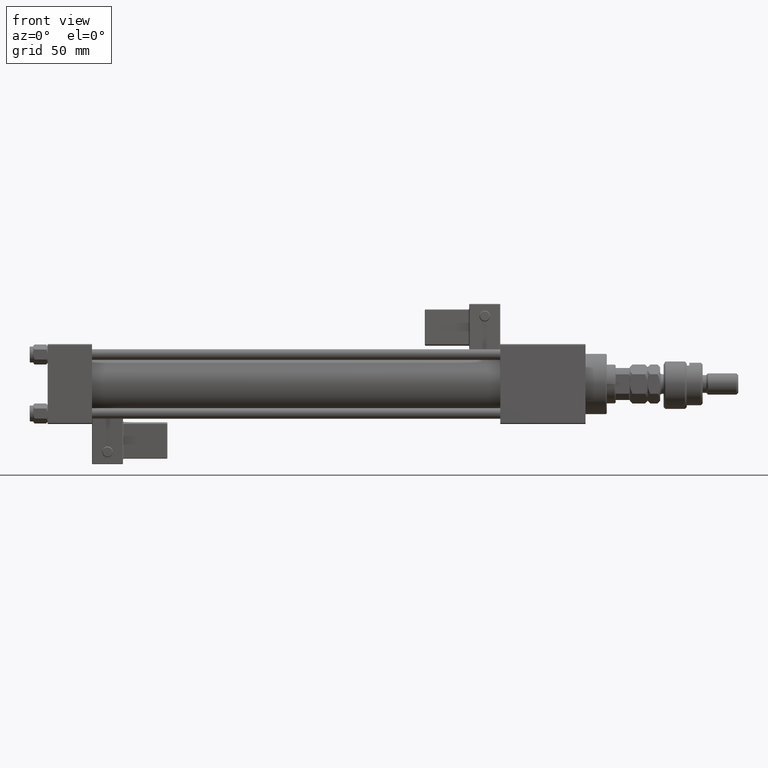
[diagram: clean part render]
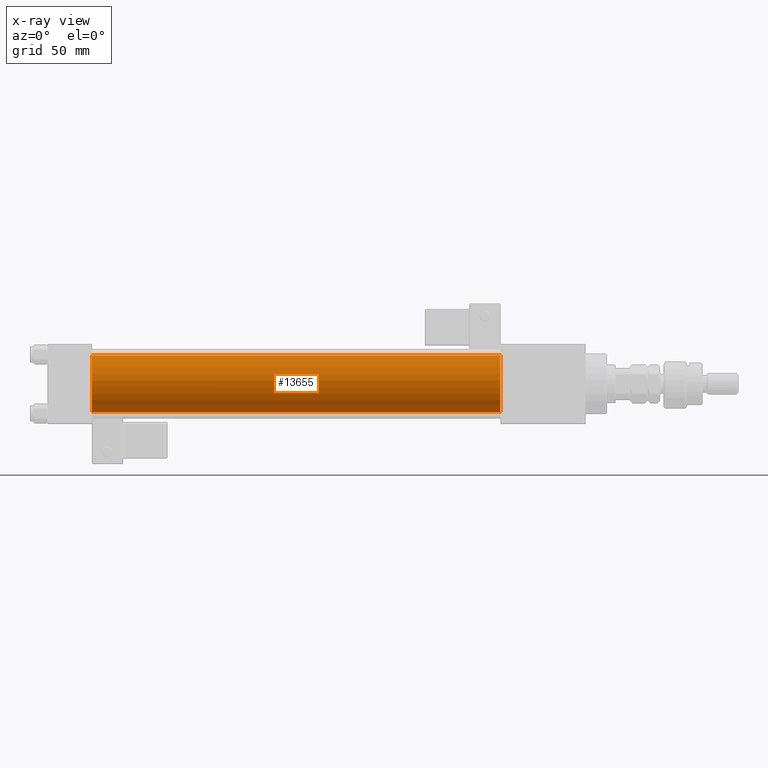
[diagram: x-ray — body ghosted, one internal face saturated and labeled with its STEP entity id]
A machine part, front view, then the same camera in x-ray: the body is ghosted and one INTERNAL B-rep face — a face not visible from any outside direction — is saturated and labeled: STEP entity #13655.
In plain terms, the highlighted cylindrical surface (edge-blend (fillet) strip) has radius 16 mm, axis along (-1, -0, -0).
Its self-contained STEP definition (entity closure, byte-faithful):
#347 = ORIENTED_EDGE ( 'NONE', *, *, #17742, .F. ) ;
#782 = CARTESIAN_POINT ( 'NONE',  ( 255.0000000000000000, -2.602085213965210642E-15, 0.000000000000000000 ) ) ;
#1435 = DIRECTION ( 'NONE',  ( -1.000000000000000000, -0.000000000000000000, -0.000000000000000000 ) ) ;
#2399 = VECTOR ( 'NONE', #1435, 1000.000000000000000 ) ;
#3211 = VECTOR ( 'NONE', #43196, 1000.000000000000000 ) ;
#8302 = ORIENTED_EDGE ( 'NONE', *, *, #42631, .F. ) ;
#11436 = DIRECTION ( 'NONE',  ( 1.000000000000000000, 0.000000000000000000, 0.000000000000000000 ) ) ;
#12825 = VERTEX_POINT ( 'NONE', #18271 ) ;
#13655 = ADVANCED_FACE ( 'NONE', ( #39390 ), #25953, .F. ) ;
#17742 = EDGE_CURVE ( 'NONE', #12825, #29335, #48504, .T. ) ;
#18271 = CARTESIAN_POINT ( 'NONE',  ( 255.0000000000000000, -2.602085213965210642E-15, 16.00000000000000000 ) ) ;
#19762 = EDGE_CURVE ( 'NONE', #55183, #34165, #23309, .T. ) ;
#22862 = ORIENTED_EDGE ( 'NONE', *, *, #19762, .T. ) ;
#23309 = LINE ( 'NONE', #45144, #2399 ) ;
#25495 = AXIS2_PLACEMENT_3D ( 'NONE', #37199, #11436, #41130 ) ;
#25953 = CYLINDRICAL_SURFACE ( 'NONE', #39086, 16.00000000000000000 ) ;
#26427 = CIRCLE ( 'NONE', #44292, 16.00000000000000000 ) ;
#29335 = VERTEX_POINT ( 'NONE', #50116 ) ;
#30163 = CARTESIAN_POINT ( 'NONE',  ( 255.0000000000000000, -2.602085213965210642E-15, 0.000000000000000000 ) ) ;
#30603 = CARTESIAN_POINT ( 'NONE',  ( 255.0000000000000000, -2.602085213965210642E-15, 16.00000000000000000 ) ) ;
#34165 = VERTEX_POINT ( 'NONE', #48506 ) ;
#34642 = DIRECTION ( 'NONE',  ( 0.000000000000000000, 0.000000000000000000, 1.000000000000000000 ) ) ;
#34715 = DIRECTION ( 'NONE',  ( 1.000000000000000000, 0.000000000000000000, 0.000000000000000000 ) ) ;
#37199 = CARTESIAN_POINT ( 'NONE',  ( 25.00000000000000000, -2.602085213965210642E-15, 0.000000000000000000 ) ) ;
#38627 = EDGE_LOOP ( 'NONE', ( #45727, #22862, #8302, #347 ) ) ;
#39086 = AXIS2_PLACEMENT_3D ( 'NONE', #30163, #52001, #34642 ) ;
#39390 = FACE_OUTER_BOUND ( 'NONE', #38627, .T. ) ;
#41042 = EDGE_CURVE ( 'NONE', #12825, #55183, #26427, .T. ) ;
#41130 = DIRECTION ( 'NONE',  ( 0.000000000000000000, 0.000000000000000000, -1.000000000000000000 ) ) ;
#42631 = EDGE_CURVE ( 'NONE', #29335, #34165, #51419, .T. ) ;
#43196 = DIRECTION ( 'NONE',  ( -1.000000000000000000, -0.000000000000000000, -0.000000000000000000 ) ) ;
#44292 = AXIS2_PLACEMENT_3D ( 'NONE', #782, #34715, #47858 ) ;
#45144 = CARTESIAN_POINT ( 'NONE',  ( 255.0000000000000000, -6.426503353294456087E-16, -16.00000000000000000 ) ) ;
#45727 = ORIENTED_EDGE ( 'NONE', *, *, #41042, .T. ) ;
#45782 = CARTESIAN_POINT ( 'NONE',  ( 255.0000000000000000, -6.426503353294456087E-16, -16.00000000000000000 ) ) ;
#47858 = DIRECTION ( 'NONE',  ( 0.000000000000000000, 0.000000000000000000, -1.000000000000000000 ) ) ;
#48504 = LINE ( 'NONE', #30603, #3211 ) ;
#48506 = CARTESIAN_POINT ( 'NONE',  ( 25.00000000000000000, -6.426503353294456087E-16, -16.00000000000000000 ) ) ;
#50116 = CARTESIAN_POINT ( 'NONE',  ( 25.00000000000000000, -2.602085213965210642E-15, 16.00000000000000000 ) ) ;
#51419 = CIRCLE ( 'NONE', #25495, 16.00000000000000000 ) ;
#52001 = DIRECTION ( 'NONE',  ( -1.000000000000000000, -0.000000000000000000, -0.000000000000000000 ) ) ;
#55183 = VERTEX_POINT ( 'NONE', #45782 ) ;